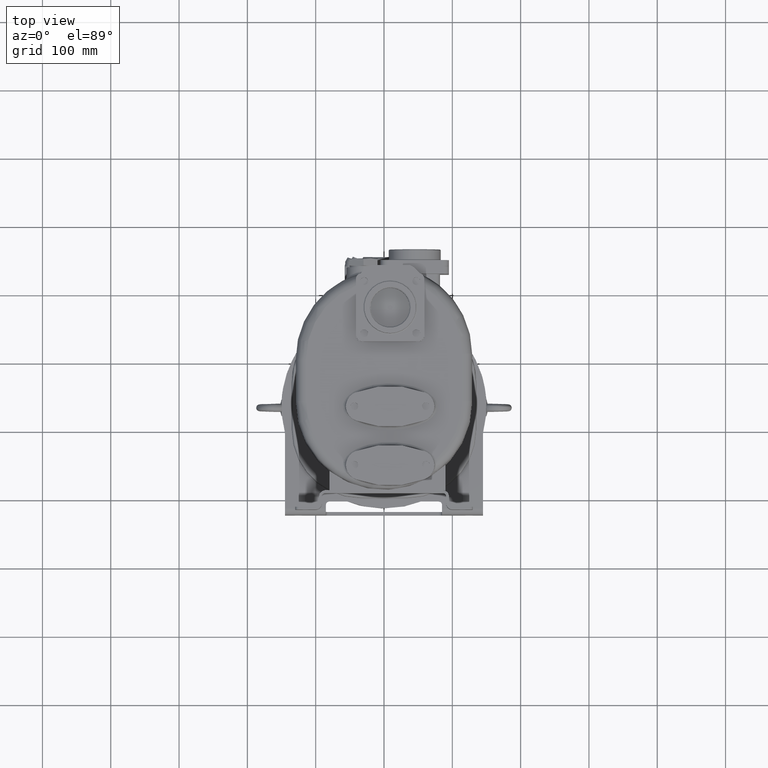
[diagram: clean part render]
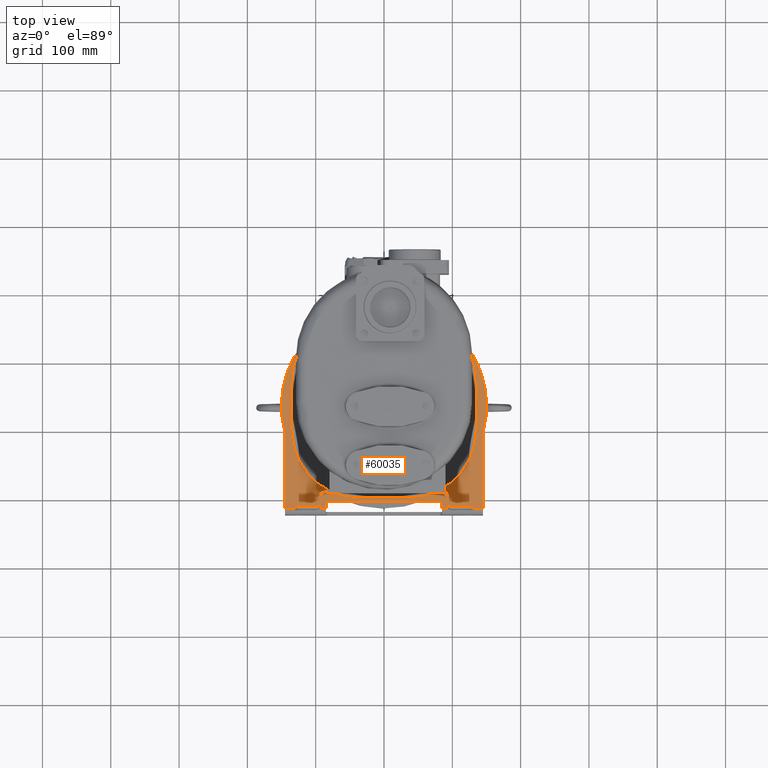
[diagram: same view with one face highlighted and labeled with its STEP entity id]
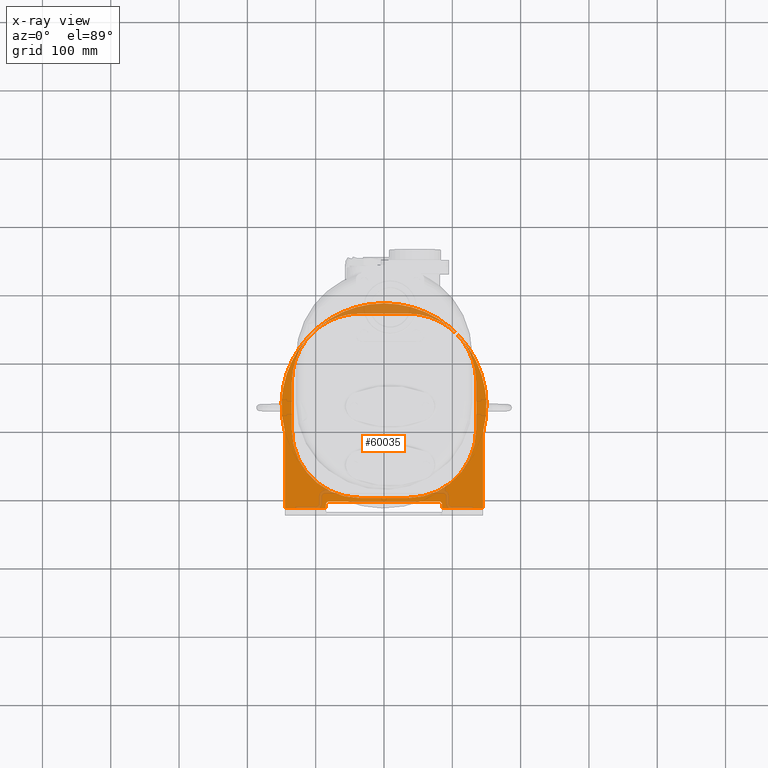
[diagram: x-ray of the same camera — body ghosted, the highlighted face saturated]
A machine part, top view. The second image highlights one B-rep face of the part: STEP entity #60035.
The next image is the same camera in x-ray: the body ghosted, the highlighted face saturated — about 17% of this face is hidden behind the body in this view.
In plain terms, the highlighted planar face has unit normal (0, 0, -1).
Its self-contained STEP definition (entity closure, byte-faithful):
#5895=CARTESIAN_POINT('',(3.5E1,9.7E1,-4.545E2));
#5896=DIRECTION('',(0.E0,0.E0,1.E0));
#5897=DIRECTION('',(0.E0,-1.E0,0.E0));
#5898=AXIS2_PLACEMENT_3D('',#5895,#5896,#5897);
#5909=CARTESIAN_POINT('',(-4.593178599594E-12,1.32E2,-4.545E2));
#5910=DIRECTION('',(0.E0,0.E0,-1.E0));
#5911=DIRECTION('',(-9.705882352941E-1,-2.407456697609E-1,0.E0));
#5912=AXIS2_PLACEMENT_3D('',#5909,#5910,#5911);
#5914=DIRECTION('',(0.E0,-1.E0,0.E0));
#5915=VECTOR('',#5914,1.090732361406E2);
#5916=CARTESIAN_POINT('',(1.45E2,9.107323614063E1,-4.545E2));
#5917=LINE('',#5916,#5915);
#5918=DIRECTION('',(0.E0,1.E0,0.E0));
#5919=VECTOR('',#5918,5.E0);
#5920=CARTESIAN_POINT('',(8.5E1,-1.8E1,-4.545E2));
#5921=LINE('',#5920,#5919);
#5922=DIRECTION('',(-1.E0,0.E0,0.E0));
#5923=VECTOR('',#5922,1.6E2);
#5924=CARTESIAN_POINT('',(8.E1,-8.000000000005E0,-4.545E2));
#5925=LINE('',#5924,#5923);
#5926=DIRECTION('',(0.E0,1.E0,0.E0));
#5927=VECTOR('',#5926,5.E0);
#5928=CARTESIAN_POINT('',(-8.5E1,-1.8E1,-4.545E2));
#5929=LINE('',#5928,#5927);
#5930=DIRECTION('',(0.E0,1.E0,0.E0));
#5931=VECTOR('',#5930,1.090732361406E2);
#5932=CARTESIAN_POINT('',(-1.45E2,-1.8E1,-4.545E2));
#5933=LINE('',#5932,#5931);
#6327=CARTESIAN_POINT('',(-1.65E2,9.107323614063E1,-4.545E2));
#6328=DIRECTION('',(0.E0,0.E0,-1.E0));
#6329=DIRECTION('',(9.705882352941E-1,2.407456697610E-1,0.E0));
#6330=AXIS2_PLACEMENT_3D('',#6327,#6328,#6329);
#6358=DIRECTION('',(1.E0,0.E0,0.E0));
#6359=VECTOR('',#6358,6.E1);
#6360=CARTESIAN_POINT('',(-1.45E2,-1.8E1,-4.545E2));
#6361=LINE('',#6360,#6359);
#6569=DIRECTION('',(1.E0,0.E0,0.E0));
#6570=VECTOR('',#6569,6.E1);
#6571=CARTESIAN_POINT('',(8.5E1,-1.8E1,-4.545E2));
#6572=LINE('',#6571,#6570);
#6617=CARTESIAN_POINT('',(1.65E2,9.107323614063E1,-4.545E2));
#6618=DIRECTION('',(0.E0,0.E0,-1.E0));
#6619=DIRECTION('',(-1.E0,0.E0,0.E0));
#6620=AXIS2_PLACEMENT_3D('',#6617,#6618,#6619);
#6661=CARTESIAN_POINT('',(-8.E1,-1.3E1,-4.545E2));
#6662=DIRECTION('',(0.E0,0.E0,-1.E0));
#6663=DIRECTION('',(-1.E0,0.E0,0.E0));
#6664=AXIS2_PLACEMENT_3D('',#6661,#6662,#6663);
#6679=CARTESIAN_POINT('',(8.E1,-1.3E1,-4.545E2));
#6680=DIRECTION('',(0.E0,0.E0,-1.E0));
#6681=DIRECTION('',(0.E0,1.E0,0.E0));
#6682=AXIS2_PLACEMENT_3D('',#6679,#6680,#6681);
#36465=CARTESIAN_POINT('',(3.5E1,1.67E2,-4.544999999999E2));
#36466=DIRECTION('',(0.E0,0.E0,1.E0));
#36467=DIRECTION('',(1.E0,0.E0,0.E0));
#36468=AXIS2_PLACEMENT_3D('',#36465,#36466,#36467);
#36479=DIRECTION('',(0.E0,1.E0,0.E0));
#36480=VECTOR('',#36479,7.E1);
#36481=CARTESIAN_POINT('',(1.35E2,9.7E1,-4.545E2));
#36482=LINE('',#36481,#36480);
#36491=DIRECTION('',(-1.E0,0.E0,0.E0));
#36492=VECTOR('',#36491,7.E1);
#36493=CARTESIAN_POINT('',(3.5E1,2.67E2,-4.545E2));
#36494=LINE('',#36493,#36492);
#36503=CARTESIAN_POINT('',(-3.5E1,1.67E2,-4.545E2));
#36504=DIRECTION('',(0.E0,0.E0,1.E0));
#36505=DIRECTION('',(0.E0,1.E0,0.E0));
#36506=AXIS2_PLACEMENT_3D('',#36503,#36504,#36505);
#36517=DIRECTION('',(0.E0,-1.E0,0.E0));
#36518=VECTOR('',#36517,7.E1);
#36519=CARTESIAN_POINT('',(-1.35E2,1.67E2,-4.545E2));
#36520=LINE('',#36519,#36518);
#36529=CARTESIAN_POINT('',(-3.5E1,9.7E1,-4.545000000001E2));
#36530=DIRECTION('',(0.E0,0.E0,1.E0));
#36531=DIRECTION('',(-1.E0,0.E0,0.E0));
#36532=AXIS2_PLACEMENT_3D('',#36529,#36530,#36531);
#36543=DIRECTION('',(1.E0,0.E0,0.E0));
#36544=VECTOR('',#36543,7.E1);
#36545=CARTESIAN_POINT('',(-3.5E1,-2.999999999998E0,-4.545E2));
#36546=LINE('',#36545,#36544);
#46098=CARTESIAN_POINT('',(-8.E1,-8.000000000005E0,-4.545E2));
#46100=VERTEX_POINT('',#46098);
#46102=CARTESIAN_POINT('',(-8.5E1,-1.3E1,-4.545E2));
#46104=VERTEX_POINT('',#46102);
#46114=CARTESIAN_POINT('',(8.5E1,-1.3E1,-4.545E2));
#46116=VERTEX_POINT('',#46114);
#46118=CARTESIAN_POINT('',(8.E1,-8.000000000005E0,-4.545E2));
#46120=VERTEX_POINT('',#46118);
#46129=CARTESIAN_POINT('',(-8.5E1,-1.8E1,-4.545E2));
#46130=VERTEX_POINT('',#46129);
#46131=CARTESIAN_POINT('',(8.5E1,-1.8E1,-4.545E2));
#46132=VERTEX_POINT('',#46131);
#46137=CARTESIAN_POINT('',(1.45E2,9.107323614063E1,-4.545E2));
#46138=CARTESIAN_POINT('',(1.45E2,-1.8E1,-4.545E2));
#46139=VERTEX_POINT('',#46137);
#46140=VERTEX_POINT('',#46138);
#46145=CARTESIAN_POINT('',(-1.45E2,-1.8E1,-4.545E2));
#46146=CARTESIAN_POINT('',(-1.45E2,9.107323614063E1,-4.545E2));
#46147=VERTEX_POINT('',#46145);
#46148=VERTEX_POINT('',#46146);
#46153=CARTESIAN_POINT('',(-1.455882352941E2,9.588814953585E1,-4.545E2));
#46154=VERTEX_POINT('',#46153);
#46155=CARTESIAN_POINT('',(1.455882352941E2,9.588814953585E1,-4.545E2));
#46156=VERTEX_POINT('',#46155);
#46157=CARTESIAN_POINT('',(1.35E2,1.67E2,-4.544999999999E2));
#46158=CARTESIAN_POINT('',(3.5E1,2.67E2,-4.544999999999E2));
#46159=VERTEX_POINT('',#46157);
#46160=VERTEX_POINT('',#46158);
#46161=CARTESIAN_POINT('',(-3.5E1,2.67E2,-4.545E2));
#46162=VERTEX_POINT('',#46161);
#46163=CARTESIAN_POINT('',(-1.35E2,1.67E2,-4.545E2));
#46164=VERTEX_POINT('',#46163);
#46165=CARTESIAN_POINT('',(-1.35E2,9.7E1,-4.545E2));
#46166=VERTEX_POINT('',#46165);
#46167=CARTESIAN_POINT('',(-3.5E1,-3.E0,-4.545000000001E2));
#46168=VERTEX_POINT('',#46167);
#46169=CARTESIAN_POINT('',(3.5E1,-2.999999999998E0,-4.545E2));
#46170=VERTEX_POINT('',#46169);
#46171=CARTESIAN_POINT('',(1.35E2,9.7E1,-4.545E2));
#46172=VERTEX_POINT('',#46171);
#59987=CARTESIAN_POINT('',(-4.593178599594E-12,1.32E2,-4.545E2));
#59988=DIRECTION('',(0.E0,0.E0,-1.E0));
#59989=DIRECTION('',(-1.E0,0.E0,0.E0));
#59990=AXIS2_PLACEMENT_3D('',#59987,#59988,#59989);
#59991=PLANE('',#59990);
#59993=ORIENTED_EDGE('',*,*,#59992,.T.);
#59995=ORIENTED_EDGE('',*,*,#59994,.F.);
#59997=ORIENTED_EDGE('',*,*,#59996,.T.);
#59999=ORIENTED_EDGE('',*,*,#59998,.F.);
#60001=ORIENTED_EDGE('',*,*,#60000,.T.);
#60003=ORIENTED_EDGE('',*,*,#60002,.F.);
#60005=ORIENTED_EDGE('',*,*,#60004,.T.);
#60007=ORIENTED_EDGE('',*,*,#60006,.F.);
#60009=ORIENTED_EDGE('',*,*,#60008,.F.);
#60011=ORIENTED_EDGE('',*,*,#60010,.F.);
#60013=ORIENTED_EDGE('',*,*,#60012,.T.);
#60015=ORIENTED_EDGE('',*,*,#60014,.F.);
#60016=EDGE_LOOP('',(#59993,#59995,#59997,#59999,#60001,#60003,#60005,#60007,
#60009,#60011,#60013,#60015));
#60017=FACE_OUTER_BOUND('',#60016,.F.);
#60019=ORIENTED_EDGE('',*,*,#60018,.T.);
#60021=ORIENTED_EDGE('',*,*,#60020,.T.);
#60023=ORIENTED_EDGE('',*,*,#60022,.T.);
#60025=ORIENTED_EDGE('',*,*,#60024,.T.);
#60027=ORIENTED_EDGE('',*,*,#60026,.T.);
#60029=ORIENTED_EDGE('',*,*,#60028,.T.);
#60030=ORIENTED_EDGE('',*,*,#59977,.T.);
#60032=ORIENTED_EDGE('',*,*,#60031,.T.);
#60033=EDGE_LOOP('',(#60019,#60021,#60023,#60025,#60027,#60029,#60030,#60032));
#60034=FACE_BOUND('',#60033,.F.);
#60035=ADVANCED_FACE('',(#60017,#60034),#59991,.F.);
#5899=CIRCLE('',#5898,1.E2);
#5913=CIRCLE('',#5912,1.5E2);
#6331=CIRCLE('',#6330,2.E1);
#6621=CIRCLE('',#6620,2.E1);
#6665=CIRCLE('',#6664,5.E0);
#6683=CIRCLE('',#6682,5.E0);
#36469=CIRCLE('',#36468,1.E2);
#36507=CIRCLE('',#36506,1.E2);
#36533=CIRCLE('',#36532,1.E2);
#59977=EDGE_CURVE('',#46170,#46172,#5899,.T.);
#59992=EDGE_CURVE('',#46154,#46156,#5913,.T.);
#59994=EDGE_CURVE('',#46139,#46156,#6621,.T.);
#59996=EDGE_CURVE('',#46139,#46140,#5917,.T.);
#59998=EDGE_CURVE('',#46132,#46140,#6572,.T.);
#60000=EDGE_CURVE('',#46132,#46116,#5921,.T.);
#60002=EDGE_CURVE('',#46120,#46116,#6683,.T.);
#60004=EDGE_CURVE('',#46120,#46100,#5925,.T.);
#60006=EDGE_CURVE('',#46104,#46100,#6665,.T.);
#60008=EDGE_CURVE('',#46130,#46104,#5929,.T.);
#60010=EDGE_CURVE('',#46147,#46130,#6361,.T.);
#60012=EDGE_CURVE('',#46147,#46148,#5933,.T.);
#60014=EDGE_CURVE('',#46154,#46148,#6331,.T.);
#60018=EDGE_CURVE('',#46159,#46160,#36469,.T.);
#60020=EDGE_CURVE('',#46160,#46162,#36494,.T.);
#60022=EDGE_CURVE('',#46162,#46164,#36507,.T.);
#60024=EDGE_CURVE('',#46164,#46166,#36520,.T.);
#60026=EDGE_CURVE('',#46166,#46168,#36533,.T.);
#60028=EDGE_CURVE('',#46168,#46170,#36546,.T.);
#60031=EDGE_CURVE('',#46172,#46159,#36482,.T.);